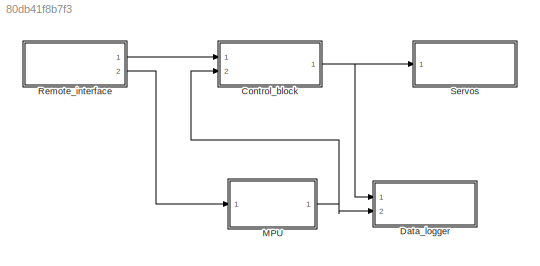
MODEL slx_80db41f8b7f3
KIND model
CONFIG AbsTol = auto
CONFIG EnableMultiTasking = off
CONFIG FixedStep = auto
CONFIG MaxStep = auto
CONFIG MinStep = auto
CONFIG RelTol = 1e-3
CONFIG SampleTimeConstraint = Unconstrained
CONFIG SolverName = VariableStepAuto
CONFIG StartTime = 0.0
CONFIG StopTime = 10.0
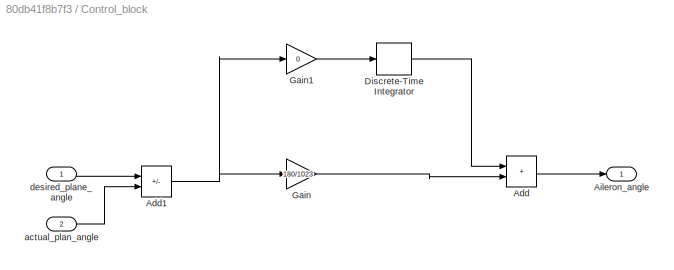
BLOCK [SubSystem] Control_block
  Ports = [2, 1]
  RequestExecContextInheritance = off
BLOCK [Sum] Control_block/Add
  IconShape = rectangular
  Ports = [2, 1]
BLOCK [Sum] Control_block/Add1
  IconShape = rectangular
  Inputs = +-
  Ports = [2, 1]
BLOCK [Outport] Control_block/Aileron_angle
BLOCK [DiscreteIntegrator] Control_block/Discrete-Time Integrator
  ICPrevOutput = DiscIntNeverNeededParam
  ICPrevScaledInput = DiscIntNeverNeededParam
  InitialConditionSetting = Auto
  Ports = [1, 1]
  SampleTime = -1
BLOCK [Gain] Control_block/Gain
  Gain = 180/1023
BLOCK [Gain] Control_block/Gain1
  Gain = 0
BLOCK [Inport] Control_block/actual_plan_angle
  IconDisplay = Signal name
  Port = 2
BLOCK [Inport] Control_block/desired_plane_angle
  IconDisplay = Signal name
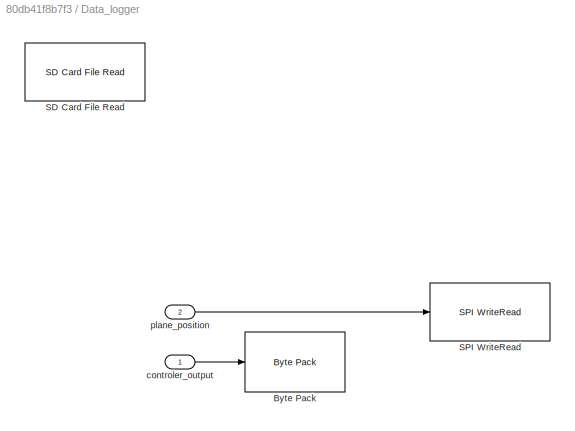
BLOCK [SubSystem] Data_logger
  Ports = [2]
  RequestExecContextInheritance = off
BLOCK [Reference] Data_logger/Byte Pack  REF=svdutilitieslib/Byte Pack
  Ports = [1, 1]
  SourceBlock = svdutilitieslib/Byte Pack
  SourceProductBaseCode = ANDROID,ARDUINO,ML_ARDUINO,ECCORTEXA,ECCORTEXR,SC_BEAGLEBONE_BLUE,EC_FREEDOM_BOARD,EC_FRDM_K64F,INTEL_BLOCKSET,JETSONCPU,MICROBIT,NUCLEO,NVIDIA,PX4AUTOPILOTS,RASPPIIO,STMICRODIS,TIC2000,XILINX_BLOCKSET
  SourceType = Byte pack
BLOCK [Reference] Data_logger/SD Card File Read  REF=arduinolib/SD Card File Read
  Ports = [0, 2]
  SourceBlock = arduinolib/SD Card File Read
  SourceProductBaseCode = ARDUINO
  SourceType = SD Card File Read
BLOCK [Reference] Data_logger/SPI WriteRead  REF=arduinolib/SPI WriteRead
  Ports = [1, 1]
  SourceBlock = arduinolib/SPI WriteRead
  SourceProductBaseCode = ARDUINO
  SourceType = SPI WriteRead
BLOCK [Inport] Data_logger/controler_output
  IconDisplay = Signal name
BLOCK [Inport] Data_logger/plane_position
  IconDisplay = Signal name
  Port = 2
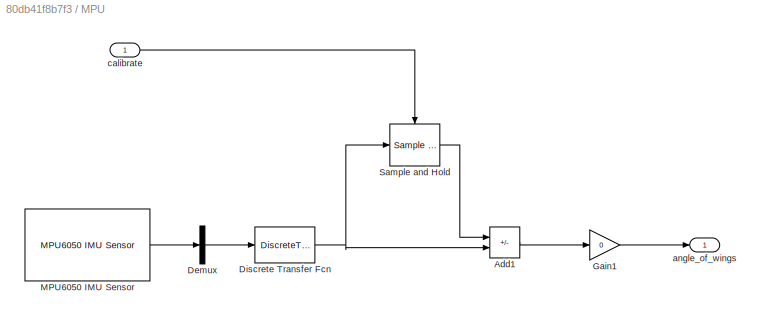
BLOCK [SubSystem] MPU
  Ports = [1, 1]
  RequestExecContextInheritance = off
BLOCK [Sum] MPU/Add1
  IconShape = rectangular
  Inputs = -+
  Ports = [2, 1]
BLOCK [Demux] MPU/Demux
  Outputs = 3
  Ports = [1, 3]
BLOCK [DiscreteTransferFcn] MPU/Discrete Transfer Fcn
  InputPortMap = u0
  Numerator = [1 0]
  Ports = [1, 1]
BLOCK [Gain] MPU/Gain1
  Gain = 0
BLOCK [Reference] MPU/MPU6050 IMU Sensor  REF=arduinosensorlib/MPU6050 IMU Sensor
  Ports = [0, 1]
  SourceBlock = arduinosensorlib/MPU6050 IMU Sensor
  SourceProductBaseCode = ARDUINO
  SourceType = Arduino MPU6050
BLOCK [Reference] MPU/Sample and Hold  REF=dspsigops/Sample
and Hold
  Ports = [1, 1, 0, 1]
  SourceBlock = dspsigops/Sample\nand Hold
  SourceProductBaseCode = DS
  SourceType = Sample and Hold
BLOCK [Outport] MPU/angle_of_wings
  IconDisplay = Signal name
BLOCK [Inport] MPU/calibrate
  IconDisplay = Signal name
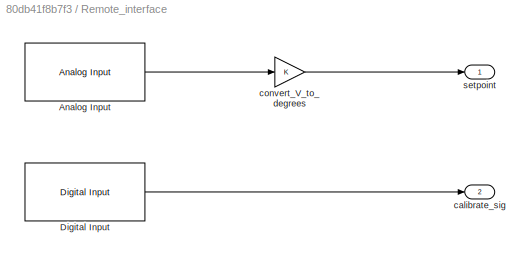
BLOCK [SubSystem] Remote_interface
  Ports = [0, 2]
  RequestExecContextInheritance = off
BLOCK [Reference] Remote_interface/Analog Input  REF=arduinolib/Analog Input
  Ports = [0, 1]
  SourceBlock = arduinolib/Analog Input
  SourceProductBaseCode = ARDUINO
  SourceType = Arduino Analog Input
BLOCK [Reference] Remote_interface/Digital Input  REF=arduinolib/Digital Input
  Ports = [0, 1]
  SourceBlock = arduinolib/Digital Input
  SourceProductBaseCode = ARDUINO
  SourceType = Arduino Digital Input
BLOCK [Outport] Remote_interface/calibrate_sig
  IconDisplay = Signal name
  Port = 2
BLOCK [Gain] Remote_interface/convert_V_to_degrees
BLOCK [Outport] Remote_interface/setpoint
  IconDisplay = Signal name
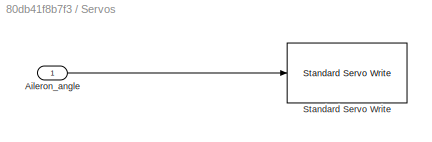
BLOCK [SubSystem] Servos
  Ports = [1]
  RequestExecContextInheritance = off
BLOCK [Inport] Servos/Aileron_angle
BLOCK [Reference] Servos/Standard Servo Write  REF=arduinolib/Standard Servo Write
  Ports = [1]
  SourceBlock = arduinolib/Standard Servo Write
  SourceProductName = Simulink Support Package for Arduino Hardware
  SourceType = Arduino Standard Servo Write
NET Control_block/Add1:1 -> Control_block/Gain1:1, Control_block/Gain:1
LINE Control_block/Add:1 -> Control_block/Aileron_angle:1
LINE Control_block/Discrete-Time Integrator:1 -> Control_block/Add:1
LINE Control_block/Gain1:1 -> Control_block/Discrete-Time Integrator:1
LINE Control_block/Gain:1 -> Control_block/Add:2
LINE Control_block/actual_plan_angle:1 -> Control_block/Add1:2
LINE Control_block/desired_plane_angle:1 -> Control_block/Add1:1
NET Control_block:1 -> Data_logger:1, Servos:1
LINE Data_logger/controler_output:1 -> Data_logger/Byte Pack:1
LINE Data_logger/plane_position:1 -> Data_logger/SPI WriteRead:1
LINE MPU/Add1:1 -> MPU/Gain1:1
LINE MPU/Demux:2 -> MPU/Discrete Transfer Fcn:1
NET MPU/Discrete Transfer Fcn:1 -> MPU/Add1:2, MPU/Sample and Hold:1
LINE MPU/Gain1:1 -> MPU/angle_of_wings:1
LINE MPU/MPU6050 IMU Sensor:1 -> MPU/Demux:1
LINE MPU/Sample and Hold:1 -> MPU/Add1:1
LINE MPU/calibrate:1 -> MPU/Sample and Hold:trigger
NET MPU:1 -> Control_block:2, Data_logger:2
LINE Remote_interface/Analog Input:1 -> Remote_interface/convert_V_to_degrees:1
LINE Remote_interface/Digital Input:1 -> Remote_interface/calibrate_sig:1
LINE Remote_interface/convert_V_to_degrees:1 -> Remote_interface/setpoint:1
LINE Remote_interface:1 -> Control_block:1
LINE Remote_interface:2 -> MPU:1
LINE Servos/Aileron_angle:1 -> Servos/Standard Servo Write:1
note: NET lines group one-source signal fan-out (src -> all destinations, sorted); 1:1 wires keep LINE
